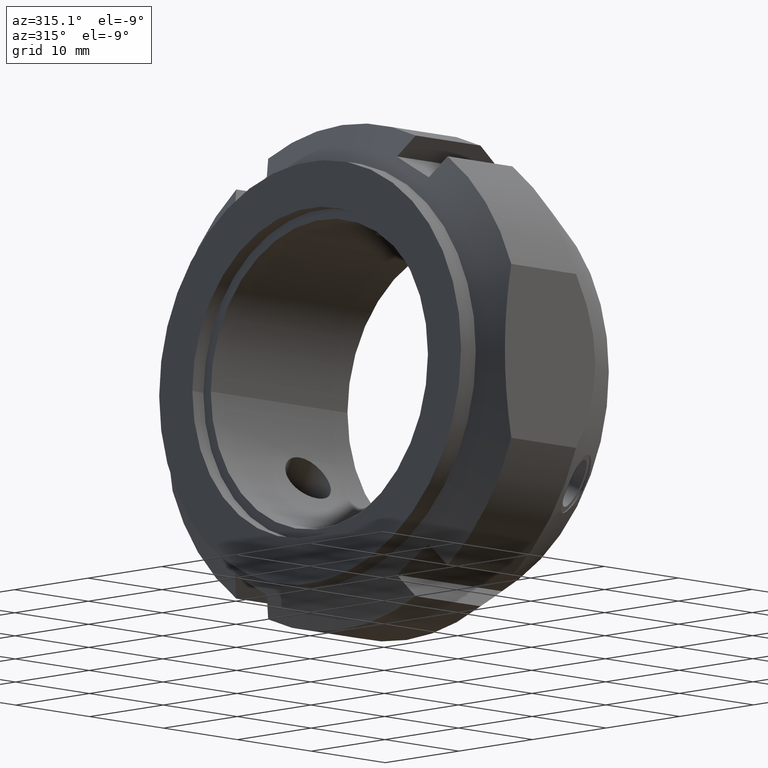
[diagram: clean part render]
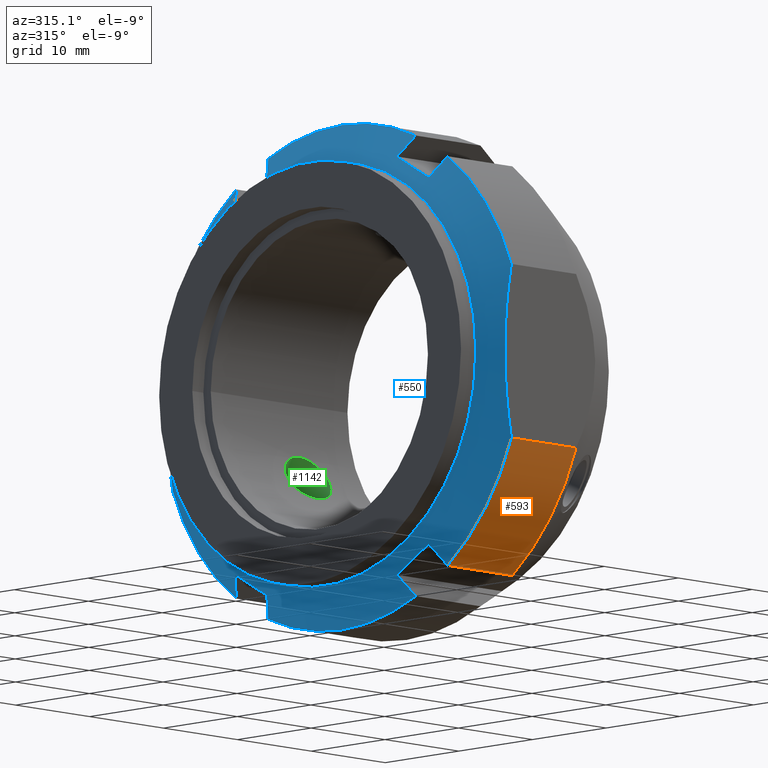
[diagram: same view with three faces highlighted in distinct colors, each labeled with its STEP entity id]
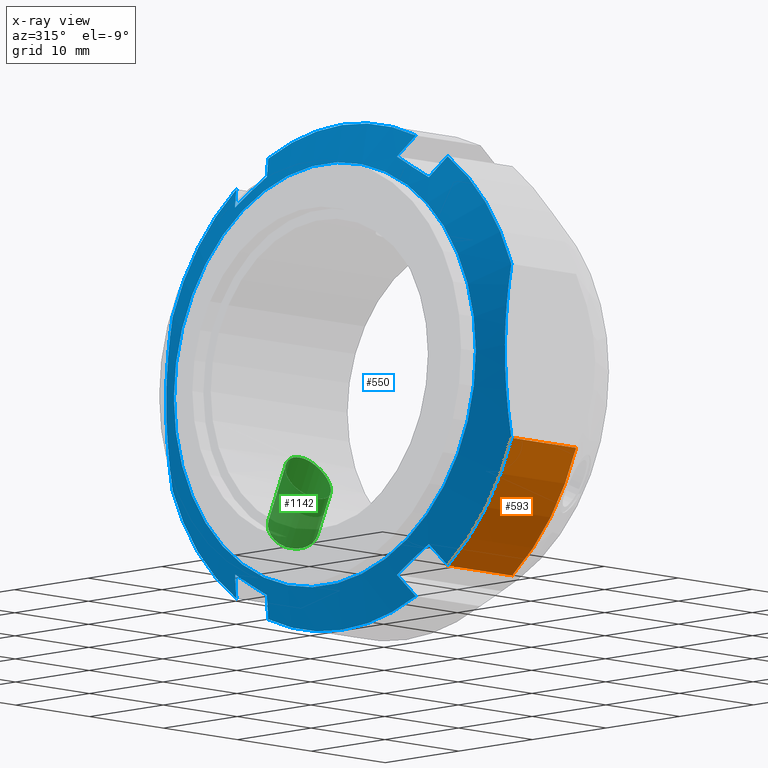
[diagram: x-ray of the same camera — body ghosted, the three highlighted faces saturated]
A machine part, auxiliary view with three faces highlighted in distinct colors.
The next image is the same camera in x-ray (body ghosted, the three faces saturated) — at least one of them is partly hidden behind the body in this view.
Their STEP definitions:

[orange] entity #593 — the highlighted cylindrical surface (partial cylindrical patch) has radius 24.5 mm, axis along (1, 0, 0).
#219=CARTESIAN_POINT('',(4.309401076758491,-14.351121116415035,-19.856870919205431));
#220=VERTEX_POINT('',#219);
#242=CARTESIAN_POINT('',(13.071796769724491,-14.35112111641503,-19.856870919205431));
#243=VERTEX_POINT('',#242);
#257=CARTESIAN_POINT('',(4.309401076758491,-14.351121116415035,-19.856870919205431));
#258=DIRECTION('',(1.0,0.0,0.0));
#259=VECTOR('',#258,8.762395692965999);
#260=LINE('',#257,#259);
#261=EDGE_CURVE('',#220,#243,#260,.T.);
#385=CARTESIAN_POINT('',(4.309401076758492,-23.000000000000043,-8.440971508066955));
#386=VERTEX_POINT('',#385);
#387=CARTESIAN_POINT('',(4.309401076758492,0.0,0.0));
#388=DIRECTION('',(1.0,0.0,0.0));
#389=DIRECTION('',(0.0,1.0,0.0));
#390=AXIS2_PLACEMENT_3D('',#387,#388,#389);
#391=CIRCLE('',#390,24.5);
#392=EDGE_CURVE('',#386,#220,#391,.T.);
#569=CARTESIAN_POINT('',(8.690598923241486,0.0,0.0));
#570=DIRECTION('',(1.0,0.0,0.0));
#571=DIRECTION('',(0.0,1.0,0.0));
#572=AXIS2_PLACEMENT_3D('',#569,#570,#571);
#573=CYLINDRICAL_SURFACE('',#572,24.5);
#574=ORIENTED_EDGE('',*,*,#261,.T.);
#575=CARTESIAN_POINT('',(13.071796769724479,-23.000000000000043,-8.440971508066941));
#576=VERTEX_POINT('',#575);
#577=CARTESIAN_POINT('',(13.071796769724479,0.0,0.0));
#578=DIRECTION('',(1.0,0.0,0.0));
#579=DIRECTION('',(0.0,1.0,0.0));
#580=AXIS2_PLACEMENT_3D('',#577,#578,#579);
#581=CIRCLE('',#580,24.499999999999996);
#582=EDGE_CURVE('',#576,#243,#581,.T.);
#583=ORIENTED_EDGE('',*,*,#582,.F.);
#584=CARTESIAN_POINT('',(13.071796769724481,-23.000000000000043,-8.440971508066955));
#585=DIRECTION('',(-1.0,0.0,0.0));
#586=VECTOR('',#585,8.762395692965988);
#587=LINE('',#584,#586);
#588=EDGE_CURVE('',#576,#386,#587,.T.);
#589=ORIENTED_EDGE('',*,*,#588,.T.);
#590=ORIENTED_EDGE('',*,*,#392,.T.);
#591=EDGE_LOOP('',(#574,#583,#589,#590));
#592=FACE_OUTER_BOUND('',#591,.T.);
#593=ADVANCED_FACE('',(#592),#573,.T.);

[blue] entity #550 — the highlighted conical surface has half-angle 60 deg.
#73=CARTESIAN_POINT('',(2.947772327642437,13.165063509461103,-17.802558883257646));
#74=VERTEX_POINT('',#73);
#75=CARTESIAN_POINT('',(2.947772327642433,8.834936490538912,-20.302558883257639));
#76=VERTEX_POINT('',#75);
#77=CARTESIAN_POINT('',(2.947772327642437,13.165063509461103,-17.802558883257646));
#78=CARTESIAN_POINT('',(2.784801230676223,11.000000000000005,-19.052558883257639));
#79=CARTESIAN_POINT('',(2.947772327642433,8.834936490538912,-20.302558883257639));
#87=(BOUNDED_CURVE()B_SPLINE_CURVE(2,(#77,#78,#79),.UNSPECIFIED.,.F.,.U.)B_SPLINE_CURVE_WITH_KNOTS((3,3),(0.822104831340091,1.353517684937334),.UNSPECIFIED.)CURVE()GEOMETRIC_REPRESENTATION_ITEM()RATIONAL_B_SPLINE_CURVE((1.053428301604893,1.060208062031471,1.053428301604894))REPRESENTATION_ITEM(''));
#88=EDGE_CURVE('',#74,#76,#87,.T.);
#127=CARTESIAN_POINT('',(4.309401076758491,10.020994097492853,-22.356870919205431));
#128=VERTEX_POINT('',#127);
#129=CARTESIAN_POINT('',(2.947772327642433,8.834936490538912,-20.302558883257639));
#130=CARTESIAN_POINT('',(3.593760381958549,9.397979069955877,-21.277777237632463));
#131=CARTESIAN_POINT('',(4.309401076758494,10.020994097492855,-22.356870919205434));
#139=(BOUNDED_CURVE()B_SPLINE_CURVE(2,(#129,#130,#131),.UNSPECIFIED.,.F.,.U.)B_SPLINE_CURVE_WITH_KNOTS((3,3),(0.200658752217771,0.464057841166676),.UNSPECIFIED.)CURVE()GEOMETRIC_REPRESENTATION_ITEM()RATIONAL_B_SPLINE_CURVE((1.00197550235665,1.002284344312706,1.0))REPRESENTATION_ITEM(''));
#140=EDGE_CURVE('',#76,#128,#139,.T.);
#172=CARTESIAN_POINT('',(4.309401076758489,14.351121116415047,-19.856870919205424));
#173=VERTEX_POINT('',#172);
#174=CARTESIAN_POINT('',(4.309401076758494,14.351121116415051,-19.856870919205431));
#175=CARTESIAN_POINT('',(3.593760381891179,13.728106088819294,-18.77777723753066));
#176=CARTESIAN_POINT('',(2.947772327642437,13.165063509461103,-17.802558883257646));
#184=(BOUNDED_CURVE()B_SPLINE_CURVE(2,(#174,#175,#176),.UNSPECIFIED.,.F.,.U.)B_SPLINE_CURVE_WITH_KNOTS((3,3),(0.0,0.263399088929693),.UNSPECIFIED.)CURVE()GEOMETRIC_REPRESENTATION_ITEM()RATIONAL_B_SPLINE_CURVE((1.0,1.002284344328806,1.001975502370762))REPRESENTATION_ITEM(''));
#185=EDGE_CURVE('',#173,#74,#184,.T.);
#217=CARTESIAN_POINT('',(2.947772327642432,-13.16506350946109,-17.802558883257646));
#218=VERTEX_POINT('',#217);
#219=CARTESIAN_POINT('',(4.309401076758491,-14.351121116415035,-19.856870919205431));
#220=VERTEX_POINT('',#219);
#221=CARTESIAN_POINT('',(2.947772327642432,-13.16506350946109,-17.802558883257646));
#222=CARTESIAN_POINT('',(3.593760381985981,-13.72810608890199,-18.77777723767392));
#223=CARTESIAN_POINT('',(4.309401076758494,-14.351121116415037,-19.856870919205438));
#231=(BOUNDED_CURVE()B_SPLINE_CURVE(2,(#221,#222,#223),.UNSPECIFIED.,.F.,.U.)B_SPLINE_CURVE_WITH_KNOTS((3,3),(0.200658752209665,0.464057841166676),.UNSPECIFIED.)CURVE()GEOMETRIC_REPRESENTATION_ITEM()RATIONAL_B_SPLINE_CURVE((1.001975502352026,1.002284344307451,1.0))REPRESENTATION_ITEM(''));
#232=EDGE_CURVE('',#218,#220,#231,.T.);
#271=CARTESIAN_POINT('',(4.309401076758487,-10.020994097492837,-22.356870919205427));
#272=VERTEX_POINT('',#271);
#273=CARTESIAN_POINT('',(2.947772327642431,-8.834936490538897,-20.302558883257646));
#274=VERTEX_POINT('',#273);
#275=CARTESIAN_POINT('',(4.309401076758494,-10.020994097492844,-22.356870919205441));
#276=CARTESIAN_POINT('',(3.593760381958904,-9.397979069956174,-21.277777237633003));
#277=CARTESIAN_POINT('',(2.947772327642431,-8.834936490538897,-20.302558883257646));
#285=(BOUNDED_CURVE()B_SPLINE_CURVE(2,(#275,#276,#277),.UNSPECIFIED.,.F.,.U.)B_SPLINE_CURVE_WITH_KNOTS((3,3),(0.0,0.263399088948848),.UNSPECIFIED.)CURVE()GEOMETRIC_REPRESENTATION_ITEM()RATIONAL_B_SPLINE_CURVE((1.0,1.002284344311888,1.001975502355943))REPRESENTATION_ITEM(''));
#286=EDGE_CURVE('',#272,#274,#285,.T.);
#325=CARTESIAN_POINT('',(2.947772327642431,-8.834936490538897,-20.302558883257646));
#326=CARTESIAN_POINT('',(2.784801230676218,-10.999999999999995,-19.052558883257646));
#327=CARTESIAN_POINT('',(2.947772327642432,-13.16506350946109,-17.802558883257646));
#335=(BOUNDED_CURVE()B_SPLINE_CURVE(2,(#325,#326,#327),.UNSPECIFIED.,.F.,.U.)B_SPLINE_CURVE_WITH_KNOTS((3,3),(0.822104831340095,1.35351768493734),.UNSPECIFIED.)CURVE()GEOMETRIC_REPRESENTATION_ITEM()RATIONAL_B_SPLINE_CURVE((1.053428301604895,1.060208062031473,1.053428301604895))REPRESENTATION_ITEM(''));
#336=EDGE_CURVE('',#274,#218,#335,.T.);
#356=CARTESIAN_POINT('',(3.154700538379244,0.0,0.0));
#357=DIRECTION('',(1.0,0.0,0.0));
#358=DIRECTION('',(0.0,1.0,0.0));
#359=AXIS2_PLACEMENT_3D('',#356,#357,#358);
#360=CONICAL_SURFACE('',#359,22.5,60.000000000000099);
#361=CARTESIAN_POINT('',(1.999999999999996,20.5,0.0));
#362=VERTEX_POINT('',#361);
#363=CARTESIAN_POINT('',(1.999999999999996,0.0,0.0));
#364=DIRECTION('',(1.0,0.0,0.0));
#365=DIRECTION('',(0.0,1.0,0.0));
#366=AXIS2_PLACEMENT_3D('',#363,#364,#365);
#367=CIRCLE('',#366,20.5);
#368=EDGE_CURVE('',#362,#362,#367,.T.);
#369=ORIENTED_EDGE('',*,*,#368,.T.);
#370=EDGE_LOOP('',(#369));
#371=FACE_OUTER_BOUND('',#370,.T.);
#372=ORIENTED_EDGE('',*,*,#185,.T.);
#373=ORIENTED_EDGE('',*,*,#88,.T.);
#374=ORIENTED_EDGE('',*,*,#140,.T.);
#375=CARTESIAN_POINT('',(4.309401076758492,0.0,0.0));
#376=DIRECTION('',(1.0,0.0,0.0));
#377=DIRECTION('',(0.0,1.0,0.0));
#378=AXIS2_PLACEMENT_3D('',#375,#376,#377);
#379=CIRCLE('',#378,24.5);
#380=EDGE_CURVE('',#272,#128,#379,.T.);
#381=ORIENTED_EDGE('',*,*,#380,.F.);
#382=ORIENTED_EDGE('',*,*,#286,.T.);
#383=ORIENTED_EDGE('',*,*,#336,.T.);
#384=ORIENTED_EDGE('',*,*,#232,.T.);
#385=CARTESIAN_POINT('',(4.309401076758492,-23.000000000000043,-8.440971508066955));
#386=VERTEX_POINT('',#385);
#387=CARTESIAN_POINT('',(4.309401076758492,0.0,0.0));
#388=DIRECTION('',(1.0,0.0,0.0));
#389=DIRECTION('',(0.0,1.0,0.0));
#390=AXIS2_PLACEMENT_3D('',#387,#388,#389);
#391=CIRCLE('',#390,24.5);
#392=EDGE_CURVE('',#386,#220,#391,.T.);
#393=ORIENTED_EDGE('',*,*,#392,.F.);
#394=CARTESIAN_POINT('',(4.309401076758492,-23.00000000000005,8.440971508066937));
#395=VERTEX_POINT('',#394);
#396=CARTESIAN_POINT('',(4.309401076758494,-23.000000000000043,-8.440971508066966));
#397=CARTESIAN_POINT('',(2.630372232686673,-23.000000000000046,-8.651863E-015));
#398=CARTESIAN_POINT('',(4.309401076758493,-23.00000000000005,8.440971508066946));
#406=(BOUNDED_CURVE()B_SPLINE_CURVE(2,(#396,#397,#398),.UNSPECIFIED.,.F.,.U.)B_SPLINE_CURVE_WITH_KNOTS((3,3),(0.0,1.697056274847692),.UNSPECIFIED.)CURVE()GEOMETRIC_REPRESENTATION_ITEM()RATIONAL_B_SPLINE_CURVE((1.0,1.065217391304343,1.0))REPRESENTATION_ITEM(''));
#407=EDGE_CURVE('',#386,#395,#406,.T.);
#408=ORIENTED_EDGE('',*,*,#407,.T.);
#409=CARTESIAN_POINT('',(4.309401076758492,-14.351121116415035,19.856870919205431));
#410=VERTEX_POINT('',#409);
#411=CARTESIAN_POINT('',(4.309401076758492,0.0,0.0));
#412=DIRECTION('',(1.0,0.0,0.0));
#413=DIRECTION('',(0.0,1.0,0.0));
#414=AXIS2_PLACEMENT_3D('',#411,#412,#413);
#415=CIRCLE('',#414,24.5);
#416=EDGE_CURVE('',#410,#395,#415,.T.);
#417=ORIENTED_EDGE('',*,*,#416,.F.);
#418=CARTESIAN_POINT('',(2.947772327642432,-13.16506350946109,17.802558883257646));
#419=VERTEX_POINT('',#418);
#420=CARTESIAN_POINT('',(4.309401076758493,-14.351121116415037,19.856870919205441));
#421=CARTESIAN_POINT('',(3.593760381987751,-13.728106088903536,18.777777237676595));
#422=CARTESIAN_POINT('',(2.947772327642432,-13.16506350946109,17.802558883257646));
#430=(BOUNDED_CURVE()B_SPLINE_CURVE(2,(#420,#421,#422),.UNSPECIFIED.,.F.,.U.)B_SPLINE_CURVE_WITH_KNOTS((3,3),(0.0,0.263399088957065),.UNSPECIFIED.)CURVE()GEOMETRIC_REPRESENTATION_ITEM()RATIONAL_B_SPLINE_CURVE((1.0,1.002284344304951,1.001975502349863))REPRESENTATION_ITEM(''));
#431=EDGE_CURVE('',#410,#419,#430,.T.);
#432=ORIENTED_EDGE('',*,*,#431,.T.);
#433=CARTESIAN_POINT('',(2.947772327642431,-8.834936490538897,20.302558883257646));
#434=VERTEX_POINT('',#433);
#435=CARTESIAN_POINT('',(2.947772327642432,-13.16506350946109,17.802558883257646));
#436=CARTESIAN_POINT('',(2.784801230676218,-10.999999999999995,19.052558883257646));
#437=CARTESIAN_POINT('',(2.947772327642431,-8.834936490538897,20.302558883257646));
#445=(BOUNDED_CURVE()B_SPLINE_CURVE(2,(#435,#436,#437),.UNSPECIFIED.,.F.,.U.)B_SPLINE_CURVE_WITH_KNOTS((3,3),(0.822104831340094,1.353517684937339),.UNSPECIFIED.)CURVE()GEOMETRIC_REPRESENTATION_ITEM()RATIONAL_B_SPLINE_CURVE((1.053428301604895,1.060208062031473,1.053428301604895))REPRESENTATION_ITEM(''));
#446=EDGE_CURVE('',#419,#434,#445,.T.);
#447=ORIENTED_EDGE('',*,*,#446,.T.);
#448=CARTESIAN_POINT('',(4.309401076758492,-10.020994097492842,22.356870919205434));
#449=VERTEX_POINT('',#448);
#450=CARTESIAN_POINT('',(2.947772327642431,-8.834936490538897,20.302558883257646));
#451=CARTESIAN_POINT('',(3.593760381958902,-9.397979069956174,21.277777237633003));
#452=CARTESIAN_POINT('',(4.309401076758494,-10.020994097492844,22.356870919205441));
#460=(BOUNDED_CURVE()B_SPLINE_CURVE(2,(#450,#451,#452),.UNSPECIFIED.,.F.,.U.)B_SPLINE_CURVE_WITH_KNOTS((3,3),(0.200658752217828,0.464057841166676),.UNSPECIFIED.)CURVE()GEOMETRIC_REPRESENTATION_ITEM()RATIONAL_B_SPLINE_CURVE((1.001975502355943,1.002284344311888,1.0))REPRESENTATION_ITEM(''));
#461=EDGE_CURVE('',#434,#449,#460,.T.);
#462=ORIENTED_EDGE('',*,*,#461,.T.);
#463=CARTESIAN_POINT('',(4.309401076758492,10.020994097492853,22.356870919205431));
#464=VERTEX_POINT('',#463);
#465=CARTESIAN_POINT('',(4.309401076758492,0.0,0.0));
#466=DIRECTION('',(1.0,0.0,0.0));
#467=DIRECTION('',(0.0,1.0,0.0));
#468=AXIS2_PLACEMENT_3D('',#465,#466,#467);
#469=CIRCLE('',#468,24.5);
#470=EDGE_CURVE('',#464,#449,#469,.T.);
#471=ORIENTED_EDGE('',*,*,#470,.F.);
#472=CARTESIAN_POINT('',(2.947772327642433,8.834936490538912,20.302558883257639));
#473=VERTEX_POINT('',#472);
#474=CARTESIAN_POINT('',(4.309401076758493,10.020994097492855,22.356870919205434));
#475=CARTESIAN_POINT('',(3.593760381956926,9.397979069954461,21.277777237630012));
#476=CARTESIAN_POINT('',(2.947772327642433,8.834936490538912,20.302558883257639));
#484=(BOUNDED_CURVE()B_SPLINE_CURVE(2,(#474,#475,#476),.UNSPECIFIED.,.F.,.U.)B_SPLINE_CURVE_WITH_KNOTS((3,3),(0.0,0.263399088948987),.UNSPECIFIED.)CURVE()GEOMETRIC_REPRESENTATION_ITEM()RATIONAL_B_SPLINE_CURVE((1.0,1.002284344315595,1.001975502359147))REPRESENTATION_ITEM(''));
#485=EDGE_CURVE('',#464,#473,#484,.T.);
#486=ORIENTED_EDGE('',*,*,#485,.T.);
#487=CARTESIAN_POINT('',(2.947772327642437,13.165063509461103,17.802558883257646));
#488=VERTEX_POINT('',#487);
#489=CARTESIAN_POINT('',(2.947772327642433,8.834936490538912,20.302558883257639));
#490=CARTESIAN_POINT('',(2.784801230676222,11.000000000000005,19.052558883257642));
#491=CARTESIAN_POINT('',(2.947772327642437,13.165063509461103,17.802558883257646));
#499=(BOUNDED_CURVE()B_SPLINE_CURVE(2,(#489,#490,#491),.UNSPECIFIED.,.F.,.U.)B_SPLINE_CURVE_WITH_KNOTS((3,3),(0.822104831340095,1.353517684937339),.UNSPECIFIED.)CURVE()GEOMETRIC_REPRESENTATION_ITEM()RATIONAL_B_SPLINE_CURVE((1.053428301604894,1.060208062031471,1.053428301604894))REPRESENTATION_ITEM(''));
#500=EDGE_CURVE('',#473,#488,#499,.T.);
#501=ORIENTED_EDGE('',*,*,#500,.T.);
#502=CARTESIAN_POINT('',(4.309401076758492,14.351121116415049,19.856870919205427));
#503=VERTEX_POINT('',#502);
#504=CARTESIAN_POINT('',(2.947772327642437,13.165063509461103,17.802558883257646));
#505=CARTESIAN_POINT('',(3.593760381891178,13.728106088819295,18.77777723753066));
#506=CARTESIAN_POINT('',(4.309401076758494,14.351121116415051,19.856870919205431));
#514=(BOUNDED_CURVE()B_SPLINE_CURVE(2,(#504,#505,#506),.UNSPECIFIED.,.F.,.U.)B_SPLINE_CURVE_WITH_KNOTS((3,3),(0.200658752236983,0.464057841166676),.UNSPECIFIED.)CURVE()GEOMETRIC_REPRESENTATION_ITEM()RATIONAL_B_SPLINE_CURVE((1.001975502370762,1.002284344328806,1.0))REPRESENTATION_ITEM(''));
#515=EDGE_CURVE('',#488,#503,#514,.T.);
#516=ORIENTED_EDGE('',*,*,#515,.T.);
#517=CARTESIAN_POINT('',(4.309401076758492,23.00000000000005,8.440971508066937));
#518=VERTEX_POINT('',#517);
#519=CARTESIAN_POINT('',(4.309401076758492,0.0,0.0));
#520=DIRECTION('',(1.0,0.0,0.0));
#521=DIRECTION('',(0.0,1.0,0.0));
#522=AXIS2_PLACEMENT_3D('',#519,#520,#521);
#523=CIRCLE('',#522,24.5);
#524=EDGE_CURVE('',#518,#503,#523,.T.);
#525=ORIENTED_EDGE('',*,*,#524,.F.);
#526=CARTESIAN_POINT('',(4.309401076758492,23.000000000000043,-8.440971508066955));
#527=VERTEX_POINT('',#526);
#528=CARTESIAN_POINT('',(4.309401076758493,23.00000000000005,8.440971508066946));
#529=CARTESIAN_POINT('',(2.630372232686673,23.000000000000046,-8.651863E-015));
#530=CARTESIAN_POINT('',(4.309401076758494,23.000000000000043,-8.440971508066966));
#538=(BOUNDED_CURVE()B_SPLINE_CURVE(2,(#528,#529,#530),.UNSPECIFIED.,.F.,.U.)B_SPLINE_CURVE_WITH_KNOTS((3,3),(0.0,1.697056274847692),.UNSPECIFIED.)CURVE()GEOMETRIC_REPRESENTATION_ITEM()RATIONAL_B_SPLINE_CURVE((1.0,1.065217391304343,1.0))REPRESENTATION_ITEM(''));
#539=EDGE_CURVE('',#518,#527,#538,.T.);
#540=ORIENTED_EDGE('',*,*,#539,.T.);
#541=CARTESIAN_POINT('',(4.309401076758492,0.0,0.0));
#542=DIRECTION('',(1.0,0.0,0.0));
#543=DIRECTION('',(0.0,1.0,0.0));
#544=AXIS2_PLACEMENT_3D('',#541,#542,#543);
#545=CIRCLE('',#544,24.5);
#546=EDGE_CURVE('',#173,#527,#545,.T.);
#547=ORIENTED_EDGE('',*,*,#546,.F.);
#548=EDGE_LOOP('',(#372,#373,#374,#381,#382,#383,#384,#393,#408,#417,#432,#447,#462,#471,#486,#501,#516,#525,#540,#547));
#549=FACE_BOUND('',#548,.T.);
#550=ADVANCED_FACE('',(#371,#549),#360,.T.);

[green] entity #1142 — the highlighted cylindrical surface (bore or boss wall) has radius 2.4585 mm, axis along (0.5, 0.75, -0.433).
#1085=CARTESIAN_POINT('',(13.000000000000009,13.499999999999996,-7.794228634059957));
#1086=DIRECTION('',(0.500000000000001,0.75,-0.43301270189222));
#1087=DIRECTION('',(0.0,-0.5,-0.866025403784438));
#1088=AXIS2_PLACEMENT_3D('',#1085,#1086,#1087);
#1089=CYLINDRICAL_SURFACE('',#1088,2.458500000000001);
#1090=CARTESIAN_POINT('',(12.543141064620208,14.043961596930298,-5.269453734871096));
#1091=VERTEX_POINT('',#1090);
#1092=CARTESIAN_POINT('',(12.543141064620208,14.043961596930298,-5.269453734871096));
#1093=CARTESIAN_POINT('',(12.8984653824633,14.043961596930298,-5.269453734871096));
#1094=CARTESIAN_POINT('',(13.280426454774048,14.022696142596317,-5.327261651500113));
#1095=CARTESIAN_POINT('',(13.998666917666453,13.931674535143213,-5.560950323454109));
#1096=CARTESIAN_POINT('',(14.33500960053404,13.861585013551732,-5.736506467652049));
#1097=CARTESIAN_POINT('',(14.860475440024025,13.690043391910526,-6.133966646038946));
#1098=CARTESIAN_POINT('',(15.093456564136773,13.579951341530014,-6.377799218045936));
#1099=CARTESIAN_POINT('',(15.413239886783874,13.311936178968564,-6.91980904753531));
#1100=CARTESIAN_POINT('',(15.499085311449788,13.15312875001942,-7.218112726471448));
#1101=CARTESIAN_POINT('',(15.499085311449788,12.835965933949542,-7.767454838176098));
#1102=CARTESIAN_POINT('',(15.421633795025878,12.665691770490913,-8.041454326351833));
#1103=CARTESIAN_POINT('',(15.129599142193397,12.344164353676421,-8.526801364832156));
#1104=CARTESIAN_POINT('',(14.915932499524263,12.193184958563004,-8.738881047182483));
#1105=CARTESIAN_POINT('',(14.405827879233088,11.925736324789419,-9.101504961455728));
#1106=CARTESIAN_POINT('',(14.059097008302441,11.799000744664955,-9.262947057711248));
#1107=CARTESIAN_POINT('',(13.313690718209525,11.628593182436852,-9.475992154176453));
#1108=CARTESIAN_POINT('',(12.914922013834278,11.585461596930298,-9.527700645279181));
#1109=CARTESIAN_POINT('',(12.194844745707449,11.585461596930298,-9.527700645279181));
#1110=CARTESIAN_POINT('',(11.819948850451036,11.623753206215355,-9.481839678880924));
#1111=CARTESIAN_POINT('',(11.126436222249019,11.786452239305225,-9.278818118715609));
#1112=CARTESIAN_POINT('',(10.80797624348966,11.910729753099695,-9.121018505171719));
#1113=CARTESIAN_POINT('',(10.337166471006805,12.180960150308904,-8.756099483892736));
#1114=CARTESIAN_POINT('',(10.143408407065058,12.337664633437972,-8.536415610615764));
#1115=CARTESIAN_POINT('',(9.885606888957874,12.666176652156835,-8.040915928711812));
#1116=CARTESIAN_POINT('',(9.821422764239001,12.837477155561194,-7.764837325563221));
#1117=CARTESIAN_POINT('',(9.821422764239001,13.143284957971954,-7.235162674436798));
#1118=CARTESIAN_POINT('',(9.885606888957874,13.29672579003778,-6.948772785233266));
#1119=CARTESIAN_POINT('',(10.143408407065056,13.561585092774278,-6.416523190622245));
#1120=CARTESIAN_POINT('',(10.3371664710068,13.673484666269362,-6.170971190707075));
#1121=CARTESIAN_POINT('',(10.807976243489657,13.854398610416512,-5.754485291209647));
#1122=CARTESIAN_POINT('',(11.126436222249019,13.928918327555655,-5.567958000372522));
#1123=CARTESIAN_POINT('',(11.819948850451036,14.023390639629834,-5.325545724462868));
#1124=CARTESIAN_POINT('',(12.194844745707448,14.043961596930302,-5.269453734871096));
#1125=CARTESIAN_POINT('',(12.543141064620208,14.043961596930302,-5.269453734871096));
#1126=B_SPLINE_CURVE_WITH_KNOTS('',3,(#1092,#1093,#1094,#1095,#1096,#1097,#1098,#1099,#1100,#1101,#1102,#1103,#1104,#1105,#1106,#1107,#1108,#1109,#1110,#1111,#1112,#1113,#1114,#1115,#1116,#1117,#1118,#1119,#1120,#1121,#1122,#1123,#1124,#1125),.UNSPECIFIED.,.T.,.U.,(4,2,2,2,2,2,2,2,2,2,2,2,2,2,2,2,4),(0.0,0.106597295352927,0.213194590705854,0.31084320665756,0.408491822609266,0.501140896299486,0.593789969989706,0.705324254753927,0.816858539518148,0.921347435191976,1.025836330865804,1.117578671589033,1.209321012312261,1.301063353035489,1.392805693758718,1.497294589432546,1.601783485106375),.UNSPECIFIED.);
#1127=EDGE_CURVE('',#1091,#1091,#1126,.T.);
#1128=ORIENTED_EDGE('',*,*,#1127,.F.);
#1129=EDGE_LOOP('',(#1128));
#1130=FACE_OUTER_BOUND('',#1129,.T.);
#1131=CARTESIAN_POINT('',(16.750000000000014,17.895749999999992,-13.170947353455645));
#1132=VERTEX_POINT('',#1131);
#1133=CARTESIAN_POINT('',(16.750000000000014,19.124999999999993,-11.041823898251602));
#1134=DIRECTION('',(0.500000000000001,0.75,-0.43301270189222));
#1135=DIRECTION('',(0.0,-0.5,-0.866025403784438));
#1136=AXIS2_PLACEMENT_3D('',#1133,#1134,#1135);
#1137=CIRCLE('',#1136,2.458500000000001);
#1138=EDGE_CURVE('',#1132,#1132,#1137,.T.);
#1139=ORIENTED_EDGE('',*,*,#1138,.T.);
#1140=EDGE_LOOP('',(#1139));
#1141=FACE_BOUND('',#1140,.T.);
#1142=ADVANCED_FACE('',(#1130,#1141),#1089,.F.);